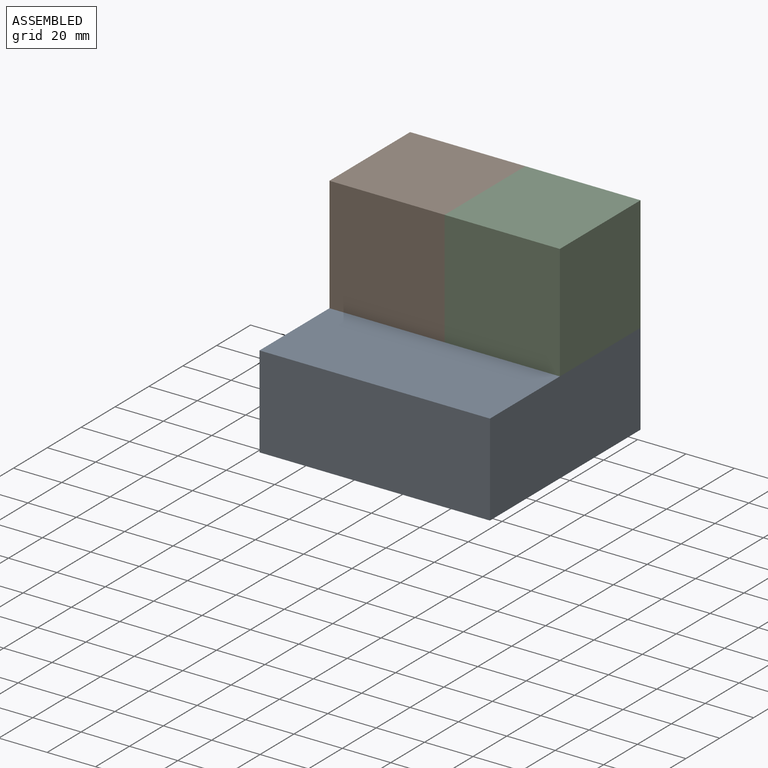
[diagram: assembled view]
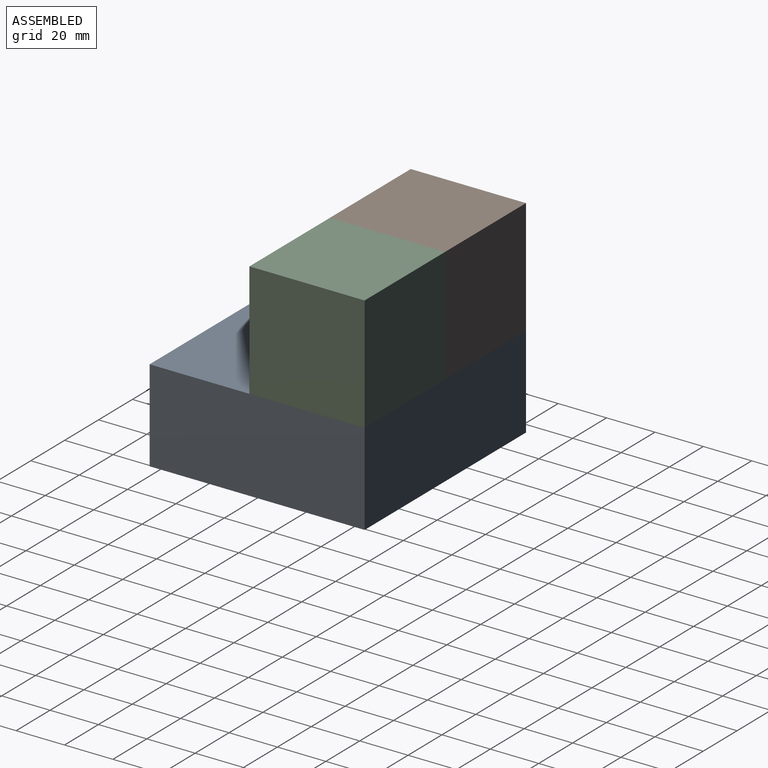
[diagram: assembled view, second angle]
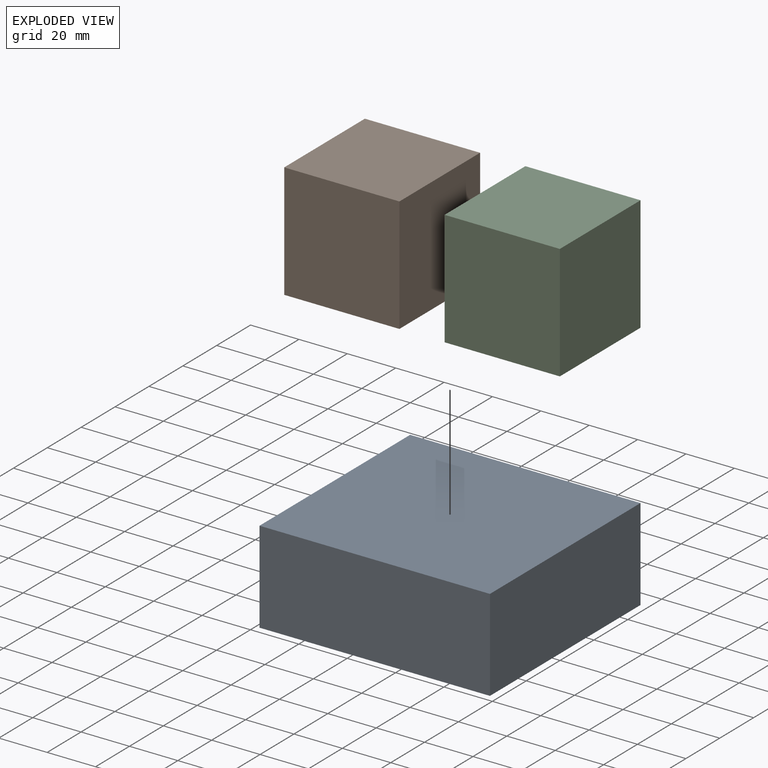
[diagram: exploded view]
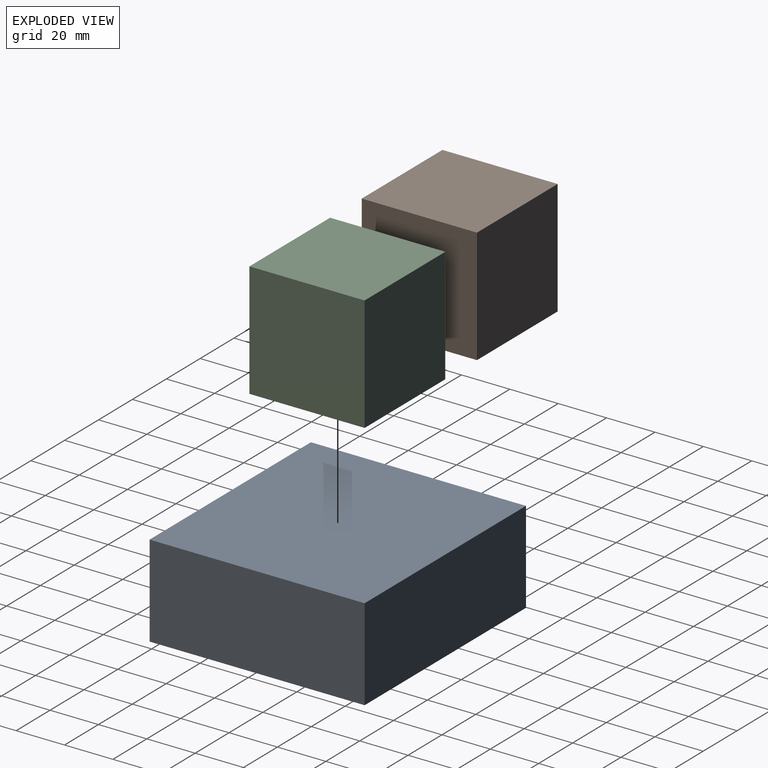
[diagram: exploded view, second angle]
ASSEMBLY  parts=3 mates=4
PART A: 6 faces, bbox 95.3x88.9x38.1 mm
  f0: plane 95.25x38.1mm, normal (0,1,0), area 3629mm2, adj f1,f3,f4,f5
  f1: plane 88.9x38.1mm, normal (-1,0,0), area 3387.1mm2, adj f0,f2,f4,f5
  f2: plane 95.25x38.1mm, normal (0,-1,0), area 3629mm2, adj f1,f3,f4,f5
  f3: plane 88.9x38.1mm, normal (1,0,0), area 3387.1mm2, adj f0,f2,f4,f5
  f4: plane 95.25x88.9mm, normal (0,0,1), area 8467.7mm2, adj f0,f1,f2,f3
  f5: plane 95.25x88.9mm, normal (0,0,-1), area 8467.7mm2, adj f0,f1,f2,f3
PART B: 6 faces, bbox 47.6x47.6x47.6 mm
  f0: plane 47.63x47.63mm, normal (0,1,0), area 2268.1mm2, adj f1,f3,f4,f5
  f1: plane 47.63x47.63mm, normal (-1,0,0), area 2268.1mm2, adj f0,f2,f4,f5
  f2: plane 47.63x47.63mm, normal (0,-1,0), area 2268.1mm2, adj f1,f3,f4,f5
  f3: plane 47.63x47.63mm, normal (1,0,0), area 2268.1mm2, adj f0,f2,f4,f5
  f4: plane 47.63x47.63mm, normal (0,0,1), area 2268.1mm2, adj f0,f1,f2,f3
  f5: plane 47.63x47.63mm, normal (0,0,-1), area 2268.1mm2, adj f0,f1,f2,f3
PART C: same geometry as B
PLACE A t=(70.23,-80.16,-32.27)mm
PLACE B t=(71.3,-59.59,5.83)mm
PLACE C t=(118.93,-59.59,5.83)mm
MATE planar B.f1 <-> A.f1  axis (-1,0,0) through (24.49,-55.94,29.64)mm
MATE planar C.f5 <-> A.f4  axis (0,0,-1) through (72.11,-55.94,5.83)mm
MATE planar B.f0 <-> A.f0  axis (0,1,0) through (48.3,-32.13,29.64)mm
MATE fastened B.f3 <-> C.f1  axis (1,0,0) through (72.11,-55.94,29.64)mm
